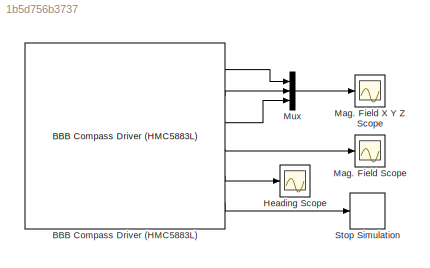
MODEL slx_1b5d756b3737
KIND model
BLOCK [Reference] BBB Compass Driver (HMC5883L)  REF=BLACKlink/BBB Compass Driver (HMC5883L)
  BBB_Compass_DataOutAvrg = 1 Sample per Measurement Output
  BBB_Compass_DataOutRate = 75 Hz
  BBB_Compass_DeclinationAng = -14.66
  BBB_Compass_GainValue = GN3 - Sensor Field Range: +/- 2.50 Ga; Gain: 660 LSb/Gauss
  BBB_Compass_HeadingMode = Output True North
  BBB_Compass_HeadingOffset = 0
  BBB_Compass_MeasureMode = Normal Configuration
  BBB_Compass_OpMode = Continuous Measurement Mode
  BBB_Compass_SelfTest = on
  BBB_Compass_SelfTest_GainValue = GN5 - Sensor Field Range: +/- 4.70 Ga; Gain: 390 LSb/Gauss
  BBB_Debug_InfoLevel = No Debug Info
  BBB_I2CAddress = Compass Address: 0x1E
  BBB_I2CBus = BeagleBone Black I2C Channel 1
  Ports = [0, 6]
  SourceBlock = BLACKlink/BBB Compass Driver (HMC5883L)
  SourceType = BLACKlink Album - BBB_Driver_Compass_HMC5883L
BLOCK [Scope] Heading Scope
  DataFormat = StructureWithTime
  Floating = off
  NumInputPorts = 1
  Ports = [1]
  SampleTime = 0
  ShowLegends = off
  YMax = 375
  YMin = 0
BLOCK [Scope] Mag. Field Scope
  DataFormat = StructureWithTime
  Floating = off
  NumInputPorts = 1
  Ports = [1]
  SampleTime = 0
  SaveName = ScopeData2
  ShowLegends = off
  YMax = 38.5
  YMin = 32
BLOCK [Scope] Mag. Field X Y Z Scope
  DataFormat = StructureWithTime
  Floating = off
  NumInputPorts = 1
  Ports = [1]
  SampleTime = 0
  SaveName = ScopeData1
  ShowLegends = off
BLOCK [Mux] Mux
  DisplayOption = bar
  Inputs = 3
  Ports = [3, 1]
BLOCK [Stop] Stop Simulation
LINE BBB Compass Driver (HMC5883L):1 -> Mux:1
LINE BBB Compass Driver (HMC5883L):2 -> Mux:2
LINE BBB Compass Driver (HMC5883L):3 -> Mux:3
LINE BBB Compass Driver (HMC5883L):4 -> Mag. Field Scope:1
LINE BBB Compass Driver (HMC5883L):5 -> Heading Scope:1
LINE BBB Compass Driver (HMC5883L):6 -> Stop Simulation:1
LINE Mux:1 -> Mag. Field X Y Z Scope:1
